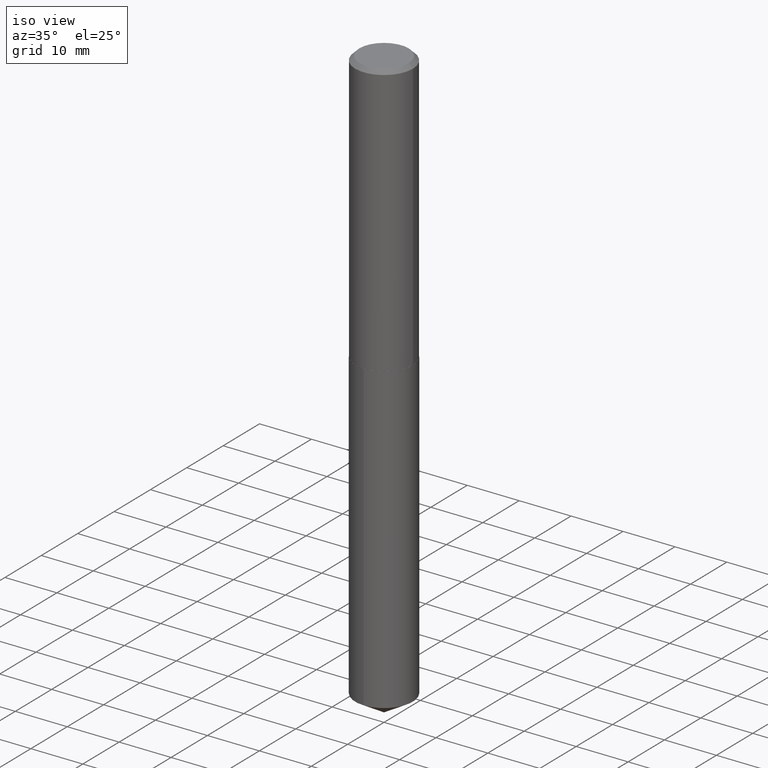
[diagram: clean part render]
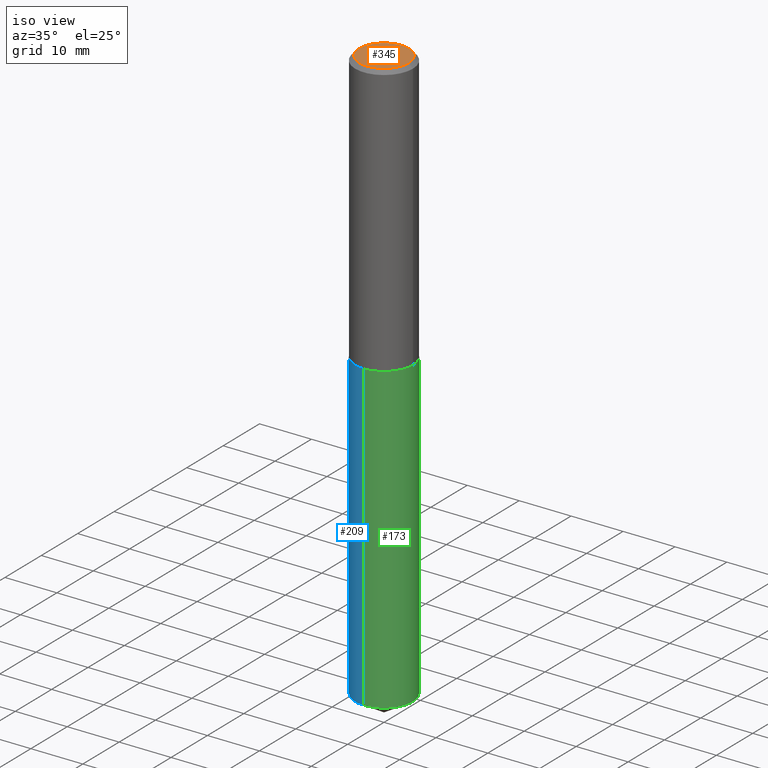
[diagram: same view with three faces highlighted in distinct colors, each labeled with its STEP entity id]
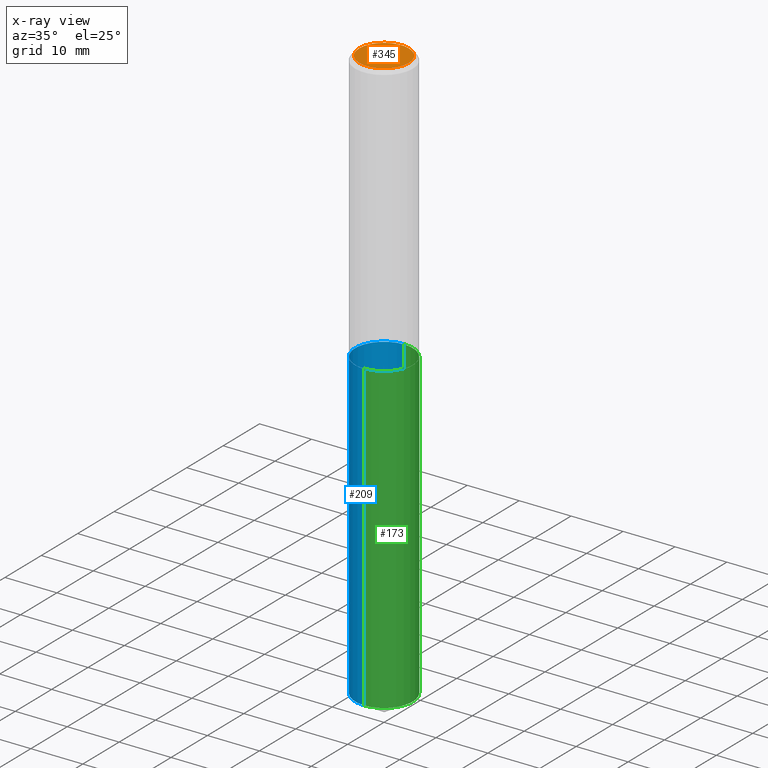
[diagram: x-ray of the same camera — body ghosted, the three highlighted faces saturated]
A machine part, iso view with three faces highlighted in distinct colors.
The next image is the same camera in x-ray (body ghosted, the three faces saturated) — at least one of them is partly hidden behind the body in this view.
Their STEP definitions:

[orange] entity #345 — the highlighted planar face has unit normal (0, -0, -1).
#2 = CARTESIAN_POINT ( 'NONE',  ( -0.1874999999999999722, 1.363859897985598178E-15, 9.552245033255873107E-19 ) ) ;
#4 = FACE_OUTER_BOUND ( 'NONE', #64, .T. ) ;
#5 = VERTEX_POINT ( 'NONE', #350 ) ;
#15 = EDGE_CURVE ( 'NONE', #5, #227, #275, .T. ) ;
#50 = AXIS2_PLACEMENT_3D ( 'NONE', #247, #256, #130 ) ;
#64 = EDGE_LOOP ( 'NONE', ( #372, #343 ) ) ;
#68 = PLANE ( 'NONE',  #50 ) ;
#72 = DIRECTION ( 'NONE',  ( -2.445468806185136597E-29, 3.491481338843145583E-15, 1.000000000000000000 ) ) ;
#105 = DIRECTION ( 'NONE',  ( 1.000000000000000000, -6.982962677686266711E-15, 4.876179125272552877E-29 ) ) ;
#130 = DIRECTION ( 'NONE',  ( -1.000000000000000000, 6.982962677686265922E-15, -4.876176775795935793E-29 ) ) ;
#188 = AXIS2_PLACEMENT_3D ( 'NONE', #379, #327, #105 ) ;
#198 = DIRECTION ( 'NONE',  ( 1.000000000000000000, -6.982962677686266711E-15, 4.876179125272552877E-29 ) ) ;
#227 = VERTEX_POINT ( 'NONE', #2 ) ;
#231 = CIRCLE ( 'NONE', #341, 0.1874999999999999722 ) ;
#247 = CARTESIAN_POINT ( 'NONE',  ( -1.167985862904636054E-47, 1.667574263899817862E-33, 4.776122516674672132E-19 ) ) ;
#256 = DIRECTION ( 'NONE',  ( 2.438088387897960049E-29, -3.491481338843145188E-15, -1.000000000000000000 ) ) ;
#275 = CIRCLE ( 'NONE', #188, 0.1874999999999999722 ) ;
#327 = DIRECTION ( 'NONE',  ( -2.445468806185136597E-29, 3.491481338843145583E-15, 1.000000000000000000 ) ) ;
#341 = AXIS2_PLACEMENT_3D ( 'NONE', #376, #72, #198 ) ;
#343 = ORIENTED_EDGE ( 'NONE', *, *, #15, .T. ) ;
#345 = ADVANCED_FACE ( 'NONE', ( #4 ), #68, .F. ) ;
#350 = CARTESIAN_POINT ( 'NONE',  ( 0.1874999999999999722, -1.448093051716766899E-15, 9.552245033445756318E-19 ) ) ;
#372 = ORIENTED_EDGE ( 'NONE', *, *, #377, .T. ) ;
#376 = CARTESIAN_POINT ( 'NONE',  ( -2.335971725809272108E-47, 3.335148527799635725E-33, 9.552245033349344265E-19 ) ) ;
#377 = EDGE_CURVE ( 'NONE', #227, #5, #231, .T. ) ;
#379 = CARTESIAN_POINT ( 'NONE',  ( -2.335971725809272108E-47, 3.335148527799635725E-33, 9.552245033349344265E-19 ) ) ;

[blue] entity #209 — the highlighted cylindrical surface (edge-blend (fillet) strip) has radius 5.5562 mm, axis along (-0, 0, 1).
#19 = EDGE_CURVE ( 'NONE', #233, #200, #332, .T. ) ;
#23 = AXIS2_PLACEMENT_3D ( 'NONE', #87, #114, #187 ) ;
#87 = CARTESIAN_POINT ( 'NONE',  ( 5.043779412756844791E-29, -7.201180261363988578E-15, -2.062500000000000000 ) ) ;
#100 = DIRECTION ( 'NONE',  ( -2.445398546167742784E-29, 3.491581955187005662E-15, 1.000000000000000000 ) ) ;
#101 = AXIS2_PLACEMENT_3D ( 'NONE', #172, #384, #329 ) ;
#114 = DIRECTION ( 'NONE',  ( -2.445398546167742504E-29, 3.491581955187005662E-15, 1.000000000000000000 ) ) ;
#125 = CARTESIAN_POINT ( 'NONE',  ( -1.527523085743763952E-15, -0.2187500000000152656, -4.368561739587721426 ) ) ;
#151 = CARTESIAN_POINT ( 'NONE',  ( 1.068301943811771508E-28, -1.525298381885563469E-14, -4.368561739587721426 ) ) ;
#155 = CARTESIAN_POINT ( 'NONE',  ( -1.527523085743819961E-15, -0.2187500000000071887, -2.062499999999999556 ) ) ;
#166 = CARTESIAN_POINT ( 'NONE',  ( -1.527523085743819961E-15, -0.2187500000000071887, -2.062499999999999556 ) ) ;
#169 = AXIS2_PLACEMENT_3D ( 'NONE', #151, #213, #388 ) ;
#172 = CARTESIAN_POINT ( 'NONE',  ( 5.043779412756844791E-29, -7.201180261363988578E-15, -2.062500000000000000 ) ) ;
#187 = DIRECTION ( 'NONE',  ( -6.982962677686265133E-15, -1.000000000000000000, 3.746534391310989557E-15 ) ) ;
#189 = VECTOR ( 'NONE', #204, 39.37007874015748143 ) ;
#193 = EDGE_LOOP ( 'NONE', ( #375, #287, #314, #230 ) ) ;
#200 = VERTEX_POINT ( 'NONE', #155 ) ;
#204 = DIRECTION ( 'NONE',  ( -2.445398546167742784E-29, 3.491581955187005662E-15, 1.000000000000000000 ) ) ;
#209 = ADVANCED_FACE ( 'NONE', ( #210 ), #330, .T. ) ;
#210 = FACE_OUTER_BOUND ( 'NONE', #193, .T. ) ;
#213 = DIRECTION ( 'NONE',  ( -2.445398546167742504E-29, 3.491581955187005662E-15, 1.000000000000000000 ) ) ;
#219 = EDGE_CURVE ( 'NONE', #346, #349, #236, .T. ) ;
#228 = LINE ( 'NONE', #354, #189 ) ;
#230 = ORIENTED_EDGE ( 'NONE', *, *, #19, .F. ) ;
#233 = VERTEX_POINT ( 'NONE', #385 ) ;
#236 = CIRCLE ( 'NONE', #169, 0.2187500000000000000 ) ;
#287 = ORIENTED_EDGE ( 'NONE', *, *, #219, .T. ) ;
#314 = ORIENTED_EDGE ( 'NONE', *, *, #380, .T. ) ;
#317 = LINE ( 'NONE', #166, #370 ) ;
#329 = DIRECTION ( 'NONE',  ( -6.982962677686265133E-15, -1.000000000000000000, 3.746534391310989557E-15 ) ) ;
#330 = CYLINDRICAL_SURFACE ( 'NONE', #23, 0.2187500000000000000 ) ;
#332 = CIRCLE ( 'NONE', #101, 0.2187500000000000000 ) ;
#346 = VERTEX_POINT ( 'NONE', #368 ) ;
#349 = VERTEX_POINT ( 'NONE', #125 ) ;
#354 = CARTESIAN_POINT ( 'NONE',  ( 1.554312234475269249E-15, 0.2187499999999927836, -2.062500000000000888 ) ) ;
#368 = CARTESIAN_POINT ( 'NONE',  ( 1.554312234475325850E-15, 0.2187499999999847622, -4.368561739587722315 ) ) ;
#370 = VECTOR ( 'NONE', #100, 39.37007874015748143 ) ;
#375 = ORIENTED_EDGE ( 'NONE', *, *, #390, .F. ) ;
#380 = EDGE_CURVE ( 'NONE', #349, #200, #317, .T. ) ;
#384 = DIRECTION ( 'NONE',  ( -2.445398546167742504E-29, 3.491581955187005662E-15, 1.000000000000000000 ) ) ;
#385 = CARTESIAN_POINT ( 'NONE',  ( 1.554312234475326047E-15, 0.2187499999999927836, -2.062500000000000888 ) ) ;
#388 = DIRECTION ( 'NONE',  ( -6.982962677686265133E-15, -1.000000000000000000, 2.497689594207326371E-15 ) ) ;
#390 = EDGE_CURVE ( 'NONE', #346, #233, #228, .T. ) ;

[green] entity #173 — the highlighted cylindrical surface (edge-blend (fillet) strip) has radius 5.5562 mm, axis along (-0, 0, 1).
#9 = ORIENTED_EDGE ( 'NONE', *, *, #380, .F. ) ;
#12 = AXIS2_PLACEMENT_3D ( 'NONE', #106, #75, #18 ) ;
#14 = DIRECTION ( 'NONE',  ( -2.445398546167742504E-29, 3.491581955187005662E-15, 1.000000000000000000 ) ) ;
#16 = CARTESIAN_POINT ( 'NONE',  ( 1.068301943811771508E-28, -1.525298381885563469E-14, -4.368561739587721426 ) ) ;
#17 = AXIS2_PLACEMENT_3D ( 'NONE', #16, #49, #357 ) ;
#18 = DIRECTION ( 'NONE',  ( -6.982962677686265133E-15, -1.000000000000000000, 3.746534391310989557E-15 ) ) ;
#21 = FACE_OUTER_BOUND ( 'NONE', #123, .T. ) ;
#28 = CIRCLE ( 'NONE', #17, 0.2187500000000000000 ) ;
#49 = DIRECTION ( 'NONE',  ( -2.445398546167742504E-29, 3.491581955187005662E-15, 1.000000000000000000 ) ) ;
#69 = EDGE_CURVE ( 'NONE', #349, #346, #28, .T. ) ;
#75 = DIRECTION ( 'NONE',  ( -2.445398546167742504E-29, 3.491581955187005662E-15, 1.000000000000000000 ) ) ;
#76 = EDGE_CURVE ( 'NONE', #200, #233, #339, .T. ) ;
#100 = DIRECTION ( 'NONE',  ( -2.445398546167742784E-29, 3.491581955187005662E-15, 1.000000000000000000 ) ) ;
#106 = CARTESIAN_POINT ( 'NONE',  ( 5.043779412756844791E-29, -7.201180261363988578E-15, -2.062500000000000000 ) ) ;
#111 = AXIS2_PLACEMENT_3D ( 'NONE', #324, #14, #179 ) ;
#123 = EDGE_LOOP ( 'NONE', ( #138, #191, #378, #9 ) ) ;
#125 = CARTESIAN_POINT ( 'NONE',  ( -1.527523085743763952E-15, -0.2187500000000152656, -4.368561739587721426 ) ) ;
#138 = ORIENTED_EDGE ( 'NONE', *, *, #69, .T. ) ;
#155 = CARTESIAN_POINT ( 'NONE',  ( -1.527523085743819961E-15, -0.2187500000000071887, -2.062499999999999556 ) ) ;
#166 = CARTESIAN_POINT ( 'NONE',  ( -1.527523085743819961E-15, -0.2187500000000071887, -2.062499999999999556 ) ) ;
#173 = ADVANCED_FACE ( 'NONE', ( #21 ), #203, .T. ) ;
#179 = DIRECTION ( 'NONE',  ( -6.982962677686265133E-15, -1.000000000000000000, 3.746534391310989557E-15 ) ) ;
#189 = VECTOR ( 'NONE', #204, 39.37007874015748143 ) ;
#191 = ORIENTED_EDGE ( 'NONE', *, *, #390, .T. ) ;
#200 = VERTEX_POINT ( 'NONE', #155 ) ;
#203 = CYLINDRICAL_SURFACE ( 'NONE', #111, 0.2187500000000000000 ) ;
#204 = DIRECTION ( 'NONE',  ( -2.445398546167742784E-29, 3.491581955187005662E-15, 1.000000000000000000 ) ) ;
#228 = LINE ( 'NONE', #354, #189 ) ;
#233 = VERTEX_POINT ( 'NONE', #385 ) ;
#317 = LINE ( 'NONE', #166, #370 ) ;
#324 = CARTESIAN_POINT ( 'NONE',  ( 5.043779412756844791E-29, -7.201180261363988578E-15, -2.062500000000000000 ) ) ;
#339 = CIRCLE ( 'NONE', #12, 0.2187500000000000000 ) ;
#346 = VERTEX_POINT ( 'NONE', #368 ) ;
#349 = VERTEX_POINT ( 'NONE', #125 ) ;
#354 = CARTESIAN_POINT ( 'NONE',  ( 1.554312234475269249E-15, 0.2187499999999927836, -2.062500000000000888 ) ) ;
#357 = DIRECTION ( 'NONE',  ( -6.982962677686265133E-15, -1.000000000000000000, 2.497689594207326371E-15 ) ) ;
#368 = CARTESIAN_POINT ( 'NONE',  ( 1.554312234475325850E-15, 0.2187499999999847622, -4.368561739587722315 ) ) ;
#370 = VECTOR ( 'NONE', #100, 39.37007874015748143 ) ;
#378 = ORIENTED_EDGE ( 'NONE', *, *, #76, .F. ) ;
#380 = EDGE_CURVE ( 'NONE', #349, #200, #317, .T. ) ;
#385 = CARTESIAN_POINT ( 'NONE',  ( 1.554312234475326047E-15, 0.2187499999999927836, -2.062500000000000888 ) ) ;
#390 = EDGE_CURVE ( 'NONE', #346, #233, #228, .T. ) ;